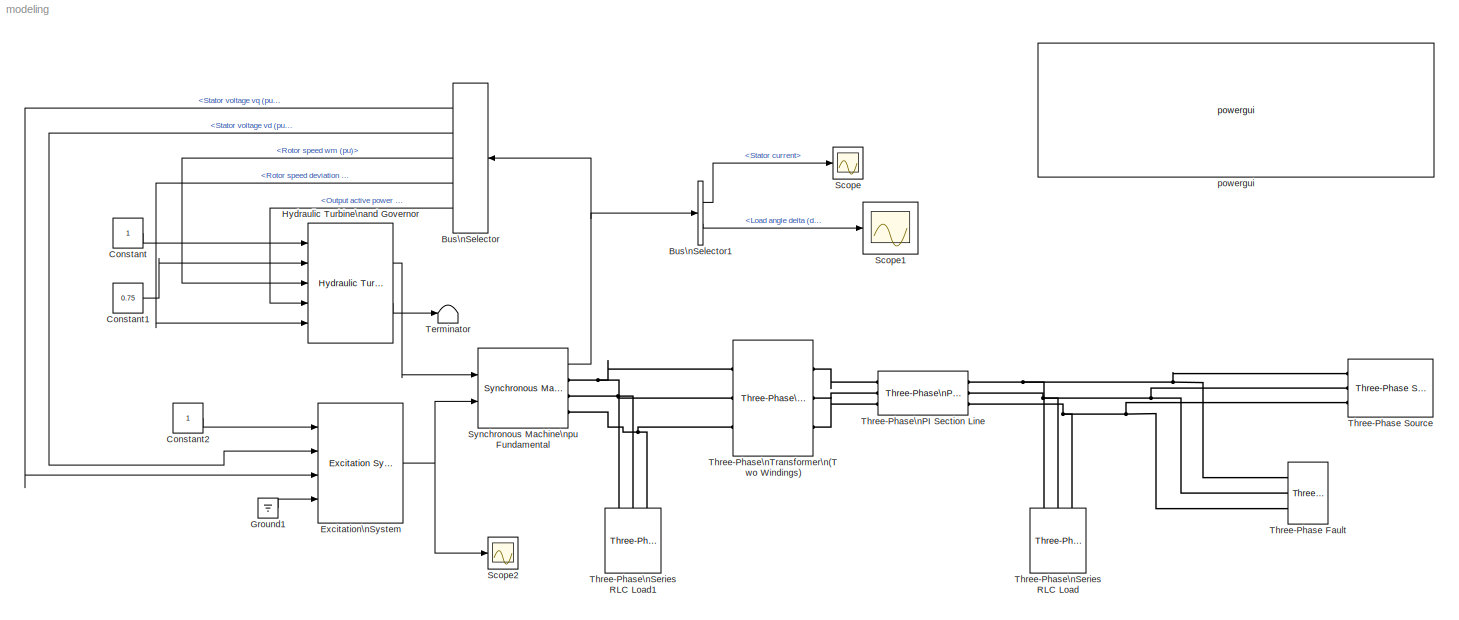
MODEL modeling
KIND model
BLOCK [BusSelector] Bus\nSelector
  NameLocation = top
  OutputSignals = dq0 components.Stator voltage  vq (pu),dq0 components.Stator voltage  vd (pu),Mechanical.Rotor speed  wm (pu),Mechanical.Rotor speed deviation  dw (pu),Output active power   Peo (pu)
  Ports = [1, 5]
  SID = 3
BLOCK [BusSelector] Bus\nSelector1
  OutputSignals = Stator current,Load angle   delta  (deg)
  Ports = [1, 2]
  SID = 11
BLOCK [Constant] Constant
  SID = 8
BLOCK [Constant] Constant1
  SID = 13
  Value = 0.75
BLOCK [Constant] Constant2
  SID = 14
BLOCK [Reference] Excitation\nSystem  REF=spsExcitationSystemLib/Excitation System
  Ports = [4, 1]
  RTWMemSecDataConstants = Inherit from model
  RTWMemSecDataInternal = Inherit from model
  RTWMemSecDataParameters = Inherit from model
  RTWMemSecFuncExecute = Inherit from model
  RTWMemSecFuncInitTerm = Inherit from model
  SID = 10
  SourceBlock = spsExcitationSystemLib/Excitation System
  SourceProductBaseCode = PS
  SourceType = Excitation System
  damp = [ 0.001, 0.1 ]
  exc = [ 1, 0 ]
  lim = [ -11.5, 11.5, 0 ]
  reg = [ 300, 0.001 ]
  sat = [ 0, 0 ]
  tgr = [ 0, 0 ]
  tr = 20e-3
  v0 = [1.0  1.28]
BLOCK [Ground] Ground1
  SID = 26
BLOCK [Reference] Hydraulic Turbine\nand Governor  REF=spsHydraulicTurbineandGovernorLib/Hydraulic Turbine\nand Governor
  Ports = [5, 2]
  RTWMemSecDataConstants = Inherit from model
  RTWMemSecDataInternal = Inherit from model
  RTWMemSecDataParameters = Inherit from model
  RTWMemSecFuncExecute = Inherit from model
  RTWMemSecFuncInitTerm = Inherit from model
  SID = 1
  SourceBlock = spsHydraulicTurbineandGovernorLib/Hydraulic Turbine\nand Governor
  SourceProductBaseCode = PS
  SourceType = Hydraulic Turbine and Governor
  dref = 0
  gate = [  0.01  0.97518  -0.1  0.1 ]
  hyd = [  0  2.67  ]
  po = 0.7516
  reg = [  0.05  1.163  0.105  0  0.01  ]
  sm = [ 10/3  0.07 ]
BLOCK [Scope] Scope
  Floating = off
  NumInputPorts = 1
  Ports = [1]
  SID = 15
  ScopeSpecificationString = Simulink.scopes.TimeScopeBlockCfg('CurrentConfiguration', extmgr.ConfigurationSet(extmgr.Configuration('Core','General UI',true),extmgr.Configuration('Core','Source UI',true),extmgr.Configuration('Sources','WiredSimulink',true,'DataLoggingSaveFormat','Array','DataLoggingDecimation','1','DataLoggingDecimateData',true),extmgr.Configuration('Visuals','Time Domain',true,'SerializedDisplays',{struct('M...<+1538ch>
BLOCK [Scope] Scope1
  Floating = off
  NumInputPorts = 1
  Ports = [1]
  SID = 16
  ScopeSpecificationString = Simulink.scopes.TimeScopeBlockCfg('CurrentConfiguration', extmgr.ConfigurationSet(extmgr.Configuration('Core','General UI',true),extmgr.Configuration('Core','Source UI',true),extmgr.Configuration('Sources','WiredSimulink',true,'DataLoggingVariableName','ScopeData1','DataLoggingSaveFormat','Array','DataLoggingDecimation','1','DataLoggingDecimateData',true),extmgr.Configuration('Visuals','Time Domai...<+2161ch>
BLOCK [Scope] Scope2
  Floating = off
  NumInputPorts = 1
  Ports = [1]
  SID = 21
  ScopeSpecificationString = Simulink.scopes.TimeScopeBlockCfg('CurrentConfiguration', extmgr.ConfigurationSet(extmgr.Configuration('Core','General UI',true),extmgr.Configuration('Core','Source UI',true),extmgr.Configuration('Sources','WiredSimulink',true,'DataLoggingVariableName','ScopeData1','DataLoggingSaveFormat','Array','DataLoggingDecimation','1','DataLoggingDecimateData',true),extmgr.Configuration('Visuals','Time Domai...<+1559ch>
BLOCK [Reference] Synchronous Machine\npu Fundamental  REF=spsSynchronousMachinepuFundamentalLib/Synchronous Machine\npu Fundamental
  BusType = swing
  Dampers1 = [ 1.17E-02  0.182  1.97E-02  0.384 ]
  Dampers2 = [0.0652, 0.5134, 0.0287, 0.2553, 7.765e-3, 0.9167 ]
  Field = [ 5.79E-04  0.114]
  InitialConditions = [ 0  0  0  0  0  0  0  0  1 ]
  IterativeDiscreteModel = Trapezoidal non iterative
  IterativeModel = Trapezoidal non iterative
  LoadFlowParameters = [1,0,0,0,0]
  MeasurementBus = off
  Mechanical = [ 3.7 0 20]
  MechanicalLoad = Mechanical power Pm
  NominalParameters = [ 187E6  13800   60]
  PLF = 0
  PolePairs = 20
  Ports = [2, 1, 0, 0, 0, 0, 3]
  Pref = 0
  PresetModel = No
  QLF = 0
  Qmax = inf
  Qmin = -inf
  Qref = 0
  RTWMemSecDataConstants = Inherit from model
  RTWMemSecDataInternal = Inherit from model
  RTWMemSecDataParameters = Inherit from model
  RTWMemSecFuncExecute = Inherit from model
  RTWMemSecFuncInitTerm = Inherit from model
  RotorType = Salient-pole
  SID = 2
  Saturation = [0.6404,0.7127,0.8441,0.9214,0.9956,1.082,1.19,1.316,1.457;0.7,0.7698,0.8872,0.9466,0.9969,1.046,1.1,1.151,1.201]
  SetSaturation = off
  ShowDetailedParameters = on
  SourceBlock = spsSynchronousMachinepuFundamentalLib/Synchronous Machine\npu Fundamental
  SourceProductBaseCode = PS
  SourceType = Synchronous Machine
  Stator = [ 2.85E-03  0.114  1.19  0.36 ]
  TsBlock = -1
  TsPowergui = 0
  Units = per unit fundamental parameters
BLOCK [Terminator] Terminator
  SID = 20
BLOCK [Reference] Three-Phase Fault  REF=spsThreePhaseFaultLib/Three-Phase Fault
  External = off
  FaultA = on
  FaultB = on
  FaultC = on
  FaultResistance = 0.001
  GroundFault = on
  GroundResistance = 0.01
  InitialStates = 0
  Measurements = None
  Ports = [0, 0, 0, 0, 0, 3]
  RTWMemSecDataConstants = Inherit from model
  RTWMemSecDataInternal = Inherit from model
  RTWMemSecDataParameters = Inherit from model
  RTWMemSecFuncExecute = Inherit from model
  RTWMemSecFuncInitTerm = Inherit from model
  SID = 4
  SnubberCapacitance = inf
  SnubberResistance = 1e6
  SourceBlock = spsThreePhaseFaultLib/Three-Phase Fault
  SourceProductBaseCode = PS
  SourceType = Three-Phase Fault
  SwitchStatus = NaN
  SwitchTimes = [7 9]
BLOCK [Reference] Three-Phase Source  REF=spsThreePhaseSourceLib/Three-Phase Source
  BaseVoltage = 25e3
  BusType = swing
  Frequency = 60
  Inductance = 16.58e-3
  InternalConnection = Yg
  NonIdealSource = on
  PhaseAngle = 0
  PhaseAngles_phases = [0 -120 +120]
  Ports = [0, 0, 0, 0, 0, 0, 3]
  Pref = 10e3
  Prefabc = [10e3, 10e3, 10e3]
  Qmax = inf
  Qmin = -inf
  Qref = 0
  Qrefabc = [0, 0, 0]
  RTWMemSecDataConstants = Inherit from model
  RTWMemSecDataInternal = Inherit from model
  RTWMemSecDataParameters = Inherit from model
  RTWMemSecFuncExecute = Inherit from model
  RTWMemSecFuncInitTerm = Inherit from model
  Resistance = 0.8929
  SID = 9
  ShortCircuitLevel = 100e6
  SourceBlock = spsThreePhaseSourceLib/Three-Phase Source
  SourceProductBaseCode = PS
  SourceType = Three-Phase Source
  SpecifyImpedance = off
  Voltage = 230e3
  VoltagePhases = off
  Voltage_phases = [25e3 25e3 25e3]/sqrt(3)
  XRratio = 7
BLOCK [Reference] Three-Phase\nPI Section Line  REF=spsThreePhasePISectionLineLib/Three-Phase\nPI Section Line
  AttributesFormatString = \\n
  Capacitances = [12.74e-9 7.751e-9]
  Frequency = 60
  Inductances = [ 0.9337e-3  4.1264e-3]
  LConnTagsString = a|b|c
  Length = 100
  Ports = [0, 0, 0, 0, 0, 3, 3]
  RConnTagsString = A|B|C
  Resistances = [ 0.01273 0.3864]
  SID = 5
  SourceBlock = spsThreePhasePISectionLineLib/Three-Phase\nPI Section Line
  SourceProductBaseCode = PS
  SourceType = Three-Phase PI Section Line
BLOCK [Reference] Three-Phase\nSeries RLC Load  REF=spsThreePhaseSeriesRLCLoadLib/Three-Phase\nSeries RLC Load
  ActivePower = 10e3
  AttributesFormatString = \\n
  CapacitivePower = 100
  Configuration = Y (grounded)
  InductivePower = 100
  LConnTagsString = A|B|C
  LoadType = constant Z
  Measurements = None
  NameLocation = right
  NominalFrequency = 60
  NominalVoltage = 13.8e3
  Pabc = [10e3 9e3 11e3]
  Pabcp = [10e3 9e3 11e3]
  Ports = [0, 0, 0, 0, 0, 3]
  QCabc = [100 90 110]
  QCabcp = [100 90 110]
  QLabc = [100 90 110]
  QLabcp = [100 90 110]
  SID = 7
  SourceBlock = spsThreePhaseSeriesRLCLoadLib/Three-Phase\nSeries RLC Load
  SourceProductBaseCode = PS
  SourceType = Three-Phase Series RLC Load
  UnbalancedPower = off
  Vabc = [1e3 1e3 1e3]
  Vabcp = [1e3 1e3 1e3]
BLOCK [Reference] Three-Phase\nSeries RLC Load1  REF=spsThreePhaseSeriesRLCLoadLib/Three-Phase\nSeries RLC Load
  ActivePower = 10e3
  AttributesFormatString = \\n
  CapacitivePower = 0
  Configuration = Y (grounded)
  InductivePower = 0
  LConnTagsString = A|B|C
  LoadType = constant Z
  Measurements = None
  NameLocation = right
  NominalFrequency = 60
  NominalVoltage = 13.8e3
  Pabc = [10e3 9e3 11e3]
  Pabcp = [10e3 9e3 11e3]
  Ports = [0, 0, 0, 0, 0, 3]
  QCabc = [100 90 110]
  QCabcp = [100 90 110]
  QLabc = [100 90 110]
  QLabcp = [100 90 110]
  SID = 22
  SourceBlock = spsThreePhaseSeriesRLCLoadLib/Three-Phase\nSeries RLC Load
  SourceProductBaseCode = PS
  SourceType = Three-Phase Series RLC Load
  UnbalancedPower = off
  Vabc = [1e3 1e3 1e3]
  Vabcp = [1e3 1e3 1e3]
BLOCK [Reference] Three-Phase\nTransformer\n(Two Windings)  REF=spsThreePhaseTransformerTwoWindingsLib/Three-Phase\nTransformer\n(Two Windings)
  BreakLoop = off
  CoreType = Three single-phase transformers
  DataFile = 'hysteresis'
  DataType = off
  DiscreteSolver = Trapezoidal iterative
  Hysteresis = off
  InitialFluxes = [ 0.8 , -0.8 , 0.7 ]
  L0 = 0.5
  Lm = 500
  Measurements = None
  NominalPower = [ 250e6 , 60 ]
  Ports = [0, 0, 0, 0, 0, 3, 3]
  RTWMemSecDataConstants = Inherit from model
  RTWMemSecDataInternal = Inherit from model
  RTWMemSecDataParameters = Inherit from model
  RTWMemSecFuncExecute = Inherit from model
  RTWMemSecFuncInitTerm = Inherit from model
  Rm = 500
  SID = 6
  Saturation = [ 0,0 ; 0.0024,1.2 ; 1.0,1.52 ]
  SetInitialFlux = off
  SetSaturation = off
  SourceBlock = spsThreePhaseTransformerTwoWindingsLib/Three-Phase\nTransformer\n(Two Windings)
  SourceProductBaseCode = PS
  SourceType = Three-Phase Transformer (Two Windings)
  TransfoNumber = 1
  UNITS = pu
  Winding1 = [ 13.8e3 , 0.002 , 0.08 ]
  Winding1Connection = Delta (D1)
  Winding2 = [ 230e3 , 0.002 , 0.08 ]
  Winding2Connection = Yg
BLOCK [Reference] powergui  REF=spspowerguiLib/powergui
  AutomaticDiscreteSolvers = off
  ContinueOnMaxIteration = off
  CurrentSourceSwitches = off
  DisableRonSwitches = off
  DisableSnubberDevices = off
  DisableVfSwitches = off
  DisplayEquations = off
  DisplayStyle = 1
  EnableUseOfTLC = off
  ErrMax = 1e-4
  ExternalGateDelay = off
  Frange = [0:2:500]
  FreqAxis = off
  FunctionMessages = off
  HookPort = off
  Interpol = off
  Iterations = 50
  MaxFrequency = 1000
  NonlinearTolerance = 1e-4
  Pbase = 100e6
  Ports = []
  Priority = 1
  RTWMemSecDataConstants = Inherit from model
  RTWMemSecDataInternal = Inherit from model
  RTWMemSecDataParameters = Inherit from model
  RTWMemSecFuncExecute = Inherit from model
  RTWMemSecFuncInitTerm = Inherit from model
  ResistiveCurrentMeasurement = off
  RestoreLinks = warning
  RmsSteady = 1
  SID = 23
  SPID = off
  SampleTime = 50e-6
  ShowGrid = off
  SolverType = Tustin/Backward Euler (TBE)
  SourceBlock = spspowerguiLib/powergui
  SourceProductBaseCode = PS
  SourceType = PSB option menu block
  StartTime = 0.0
  SwTol = 0
  Ts = 100
  UnitsV = kV
  UnitsW = MW
  Xlog = on
  Ylog = off
  ZoomFFT = off
  buscounter = 0
  cycles = 1
  display = off
  echomessages = off
  frequency = 60
  frequencyindice = 60
  frequencyindicesteady = 1
  fundamental = 60
  methode = off
  nMaxIteration = 100
  save = off
  structure = 0
  variable = ZData
  x0status = blocks
LINE Bus\nSelector1:1 -> Scope:1
LINE Bus\nSelector1:2 -> Scope1:1
LINE Bus\nSelector:1 -> Excitation\nSystem:3
LINE Bus\nSelector:2 -> Excitation\nSystem:2
LINE Bus\nSelector:3 -> Hydraulic Turbine\nand Governor:3
LINE Bus\nSelector:4 -> Hydraulic Turbine\nand Governor:5
LINE Bus\nSelector:5 -> Hydraulic Turbine\nand Governor:4
LINE Constant1:1 -> Hydraulic Turbine\nand Governor:2
LINE Constant2:1 -> Excitation\nSystem:1
LINE Constant:1 -> Hydraulic Turbine\nand Governor:1
NET Excitation\nSystem:1 -> Scope2:1, Synchronous Machine\npu Fundamental:2
LINE Ground1:1 -> Excitation\nSystem:4
LINE Hydraulic Turbine\nand Governor:1 -> Synchronous Machine\npu Fundamental:1
LINE Hydraulic Turbine\nand Governor:2 -> Terminator:1
NET Synchronous Machine\npu Fundamental:1 -> Bus\nSelector1:1, Bus\nSelector:1
PNET net1: Synchronous Machine\npu Fundamental:RConn1 -- Three-Phase\nSeries RLC Load1:LConn1 -- Three-Phase\nTransformer\n(Two Windings):LConn1
PNET net2: Synchronous Machine\npu Fundamental:RConn2 -- Three-Phase\nSeries RLC Load1:LConn2 -- Three-Phase\nTransformer\n(Two Windings):LConn2
PNET net3: Synchronous Machine\npu Fundamental:RConn3 -- Three-Phase\nSeries RLC Load1:LConn3 -- Three-Phase\nTransformer\n(Two Windings):LConn3
PNET net4: Three-Phase Fault:LConn1 -- Three-Phase Source:RConn1 -- Three-Phase\nPI Section Line:RConn1 -- Three-Phase\nSeries RLC Load:LConn1
PNET net5: Three-Phase Fault:LConn2 -- Three-Phase Source:RConn2 -- Three-Phase\nPI Section Line:RConn2 -- Three-Phase\nSeries RLC Load:LConn2
PNET net6: Three-Phase Fault:LConn3 -- Three-Phase Source:RConn3 -- Three-Phase\nPI Section Line:RConn3 -- Three-Phase\nSeries RLC Load:LConn3
PLINE Three-Phase\nPI Section Line:LConn1 -- Three-Phase\nTransformer\n(Two Windings):RConn1
PLINE Three-Phase\nPI Section Line:LConn2 -- Three-Phase\nTransformer\n(Two Windings):RConn2
PLINE Three-Phase\nPI Section Line:LConn3 -- Three-Phase\nTransformer\n(Two Windings):RConn3
note: NET lines group one-source signal fan-out (src -> all destinations, sorted); 1:1 wires keep LINE; PNET lines group multi-terminal physical nets as a canonical sorted terminal list (undirected conserving connections); 2-terminal nets keep the pairwise PLINE form
